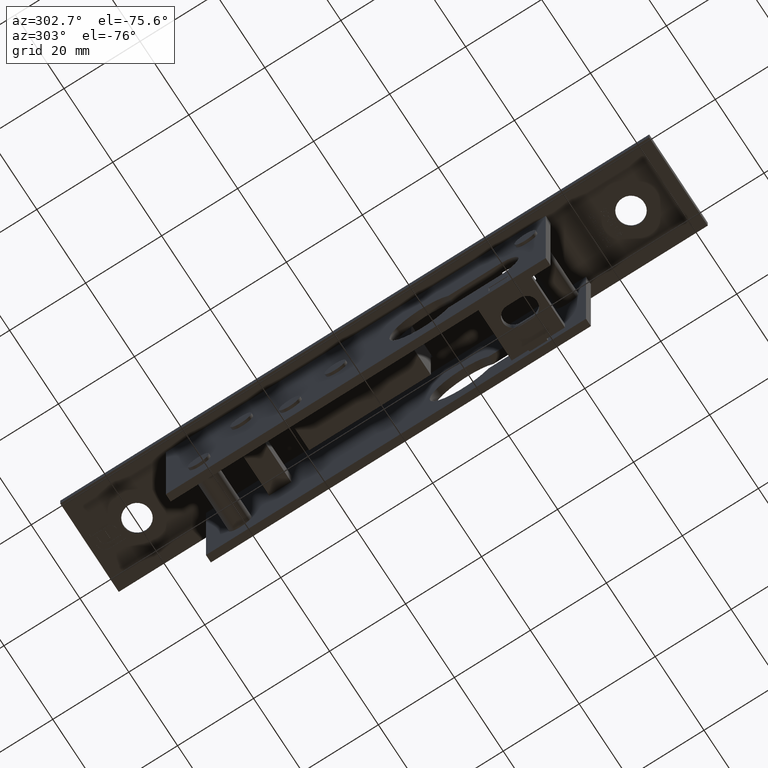
[diagram: clean part render]
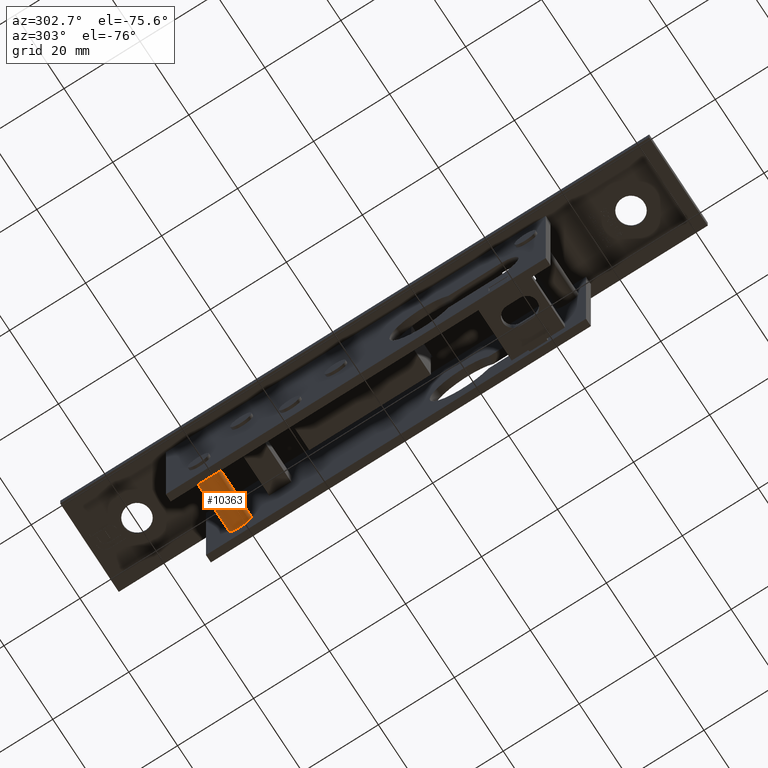
[diagram: same view with one face highlighted and labeled with its STEP entity id]
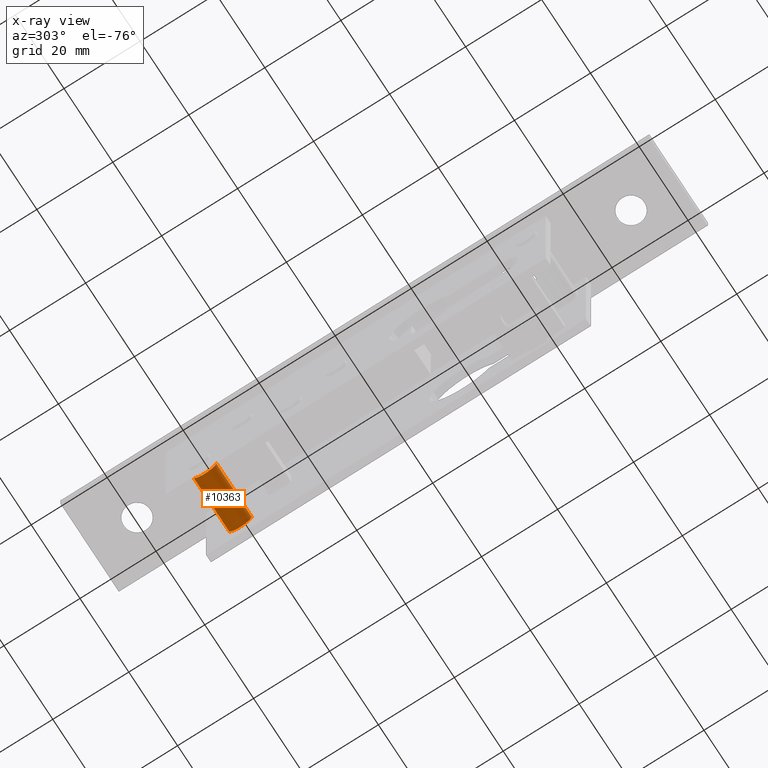
[diagram: x-ray of the same camera — body ghosted, the highlighted face saturated]
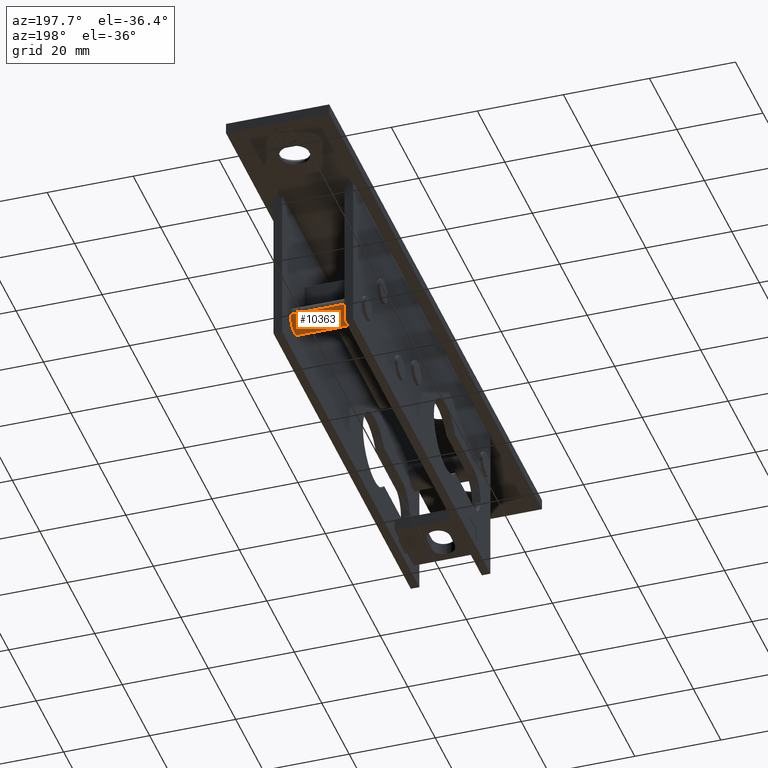
[diagram: same view with one face highlighted and labeled with its STEP entity id]
A machine part, auxiliary view. The second image highlights one B-rep face of the part: STEP entity #10363.
The next image is the same camera in x-ray: the body ghosted, the highlighted face saturated — about 0% of this face is hidden behind the body in this view.
A second angle (auxiliary view) of the same face is appended — the face is thin or edge-on in the first view.
In plain terms, the highlighted cylindrical surface (edge-blend (fillet) strip) has radius 3 mm, axis along (1, -0, -0).
Its self-contained STEP definition (entity closure, byte-faithful):
#96 = DIRECTION ( 'NONE',  ( 1.000000000000000000, -1.214306433183764966E-16, -0.000000000000000000 ) ) ;
#657 = VERTEX_POINT ( 'NONE', #5468 ) ;
#1301 = ORIENTED_EDGE ( 'NONE', *, *, #4145, .T. ) ;
#1482 = DIRECTION ( 'NONE',  ( 1.000000000000000000, -1.214306433183764966E-16, -0.000000000000000000 ) ) ;
#2729 = DIRECTION ( 'NONE',  ( -1.000000000000000000, 1.214306433183764966E-16, -0.000000000000000000 ) ) ;
#2821 = DIRECTION ( 'NONE',  ( 0.000000000000000000, 1.000000000000000000, 0.000000000000000000 ) ) ;
#3601 = VERTEX_POINT ( 'NONE', #15381 ) ;
#4101 = DIRECTION ( 'NONE',  ( 1.000000000000000000, -1.214306433183764966E-16, -0.000000000000000000 ) ) ;
#4145 = EDGE_CURVE ( 'NONE', #16268, #10307, #17229, .T. ) ;
#4375 = ORIENTED_EDGE ( 'NONE', *, *, #12511, .T. ) ;
#5248 = CARTESIAN_POINT ( 'NONE',  ( -7.249999999999979572, 45.50000000000000711, -28.49999999999999645 ) ) ;
#5468 = CARTESIAN_POINT ( 'NONE',  ( 7.250000000000023981, 39.50000000000000000, -28.49999999999999645 ) ) ;
#5576 = DIRECTION ( 'NONE',  ( 0.000000000000000000, 1.000000000000000000, 0.000000000000000000 ) ) ;
#5870 = DIRECTION ( 'NONE',  ( 1.000000000000000000, -1.214306433183764966E-16, -0.000000000000000000 ) ) ;
#6581 = AXIS2_PLACEMENT_3D ( 'NONE', #7035, #2729, #5576 ) ;
#7035 = CARTESIAN_POINT ( 'NONE',  ( 7.250000000000023981, 42.50000000000000000, -28.49999999999999645 ) ) ;
#7428 = CIRCLE ( 'NONE', #6581, 3.000000000000002665 ) ;
#7688 = EDGE_CURVE ( 'NONE', #16268, #657, #15204, .T. ) ;
#9995 = CARTESIAN_POINT ( 'NONE',  ( -12.00199999999997402, 45.50000000000000711, -28.49999999999999645 ) ) ;
#10009 = EDGE_CURVE ( 'NONE', #3601, #657, #7428, .T. ) ;
#10307 = VERTEX_POINT ( 'NONE', #5248 ) ;
#10363 = ADVANCED_FACE ( 'NONE', ( #15766 ), #16652, .T. ) ;
#10376 = EDGE_LOOP ( 'NONE', ( #11694, #1301, #4375, #16676 ) ) ;
#11694 = ORIENTED_EDGE ( 'NONE', *, *, #7688, .F. ) ;
#12496 = CARTESIAN_POINT ( 'NONE',  ( -12.00199999999997402, 39.50000000000000000, -28.49999999999999645 ) ) ;
#12511 = EDGE_CURVE ( 'NONE', #10307, #3601, #14840, .T. ) ;
#12722 = AXIS2_PLACEMENT_3D ( 'NONE', #15656, #96, #14066 ) ;
#13755 = VECTOR ( 'NONE', #5870, 1000.000000000000000 ) ;
#14028 = CARTESIAN_POINT ( 'NONE',  ( -12.00199999999997402, 42.50000000000000000, -28.49999999999999645 ) ) ;
#14066 = DIRECTION ( 'NONE',  ( 0.000000000000000000, -1.000000000000000000, 0.000000000000000000 ) ) ;
#14306 = VECTOR ( 'NONE', #1482, 1000.000000000000000 ) ;
#14840 = LINE ( 'NONE', #9995, #13755 ) ;
#15204 = LINE ( 'NONE', #12496, #14306 ) ;
#15381 = CARTESIAN_POINT ( 'NONE',  ( 7.250000000000023981, 45.50000000000000711, -28.49999999999999645 ) ) ;
#15656 = CARTESIAN_POINT ( 'NONE',  ( -7.249999999999979572, 42.50000000000000000, -28.49999999999999645 ) ) ;
#15766 = FACE_OUTER_BOUND ( 'NONE', #10376, .T. ) ;
#16202 = CARTESIAN_POINT ( 'NONE',  ( -7.249999999999979572, 39.50000000000000000, -28.49999999999999645 ) ) ;
#16268 = VERTEX_POINT ( 'NONE', #16202 ) ;
#16652 = CYLINDRICAL_SURFACE ( 'NONE', #17924, 3.000000000000002665 ) ;
#16676 = ORIENTED_EDGE ( 'NONE', *, *, #10009, .T. ) ;
#17229 = CIRCLE ( 'NONE', #12722, 3.000000000000002665 ) ;
#17924 = AXIS2_PLACEMENT_3D ( 'NONE', #14028, #4101, #2821 ) ;